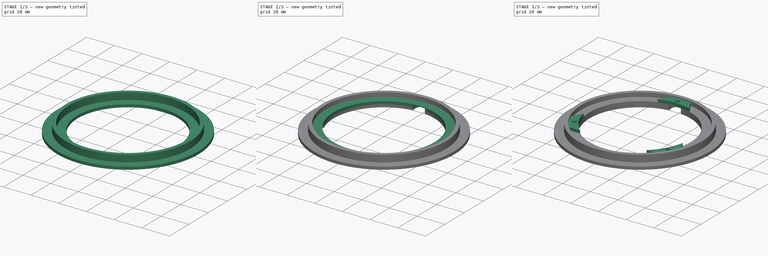
[diagram: build sequence overview — one tinted view per stage of 3, left to right]
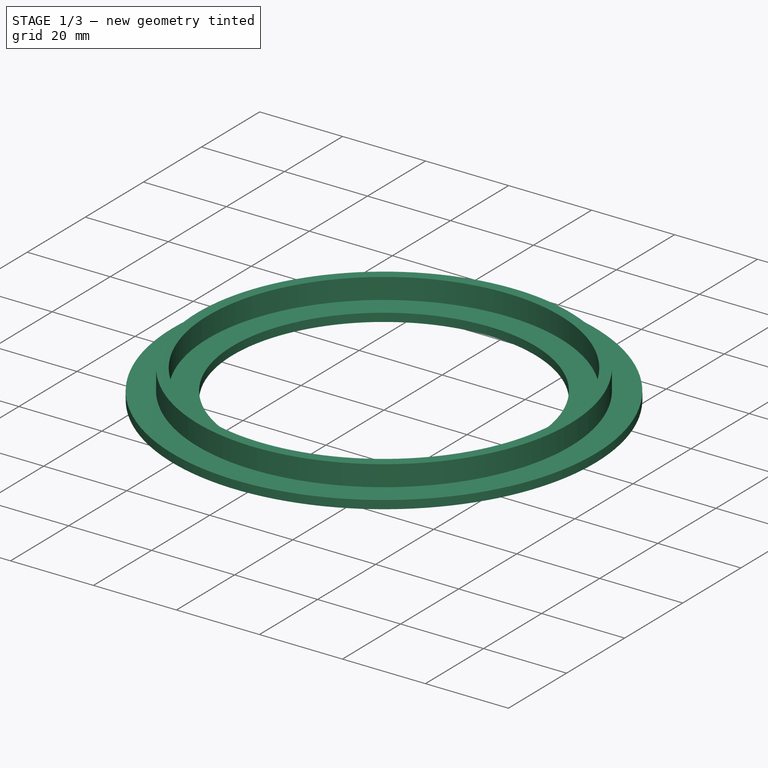
[diagram: stage 1 of 3 — iso view after this stage's code; geometry added in this stage tinted green]
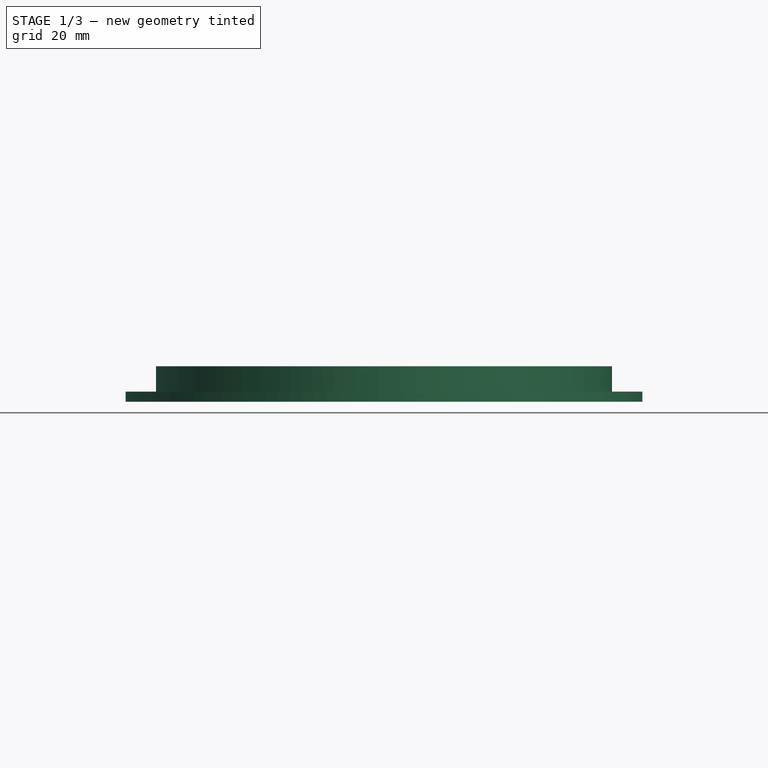
[diagram: stage 1 of 3 — front view after this stage's code; geometry added in this stage tinted green]
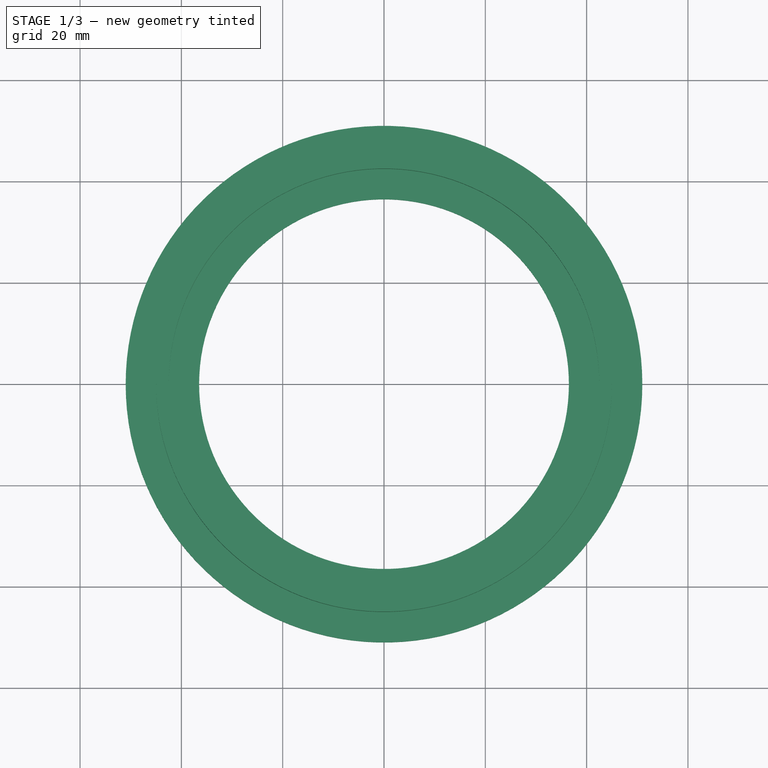
[diagram: stage 1 of 3 — top view after this stage's code; geometry added in this stage tinted green]
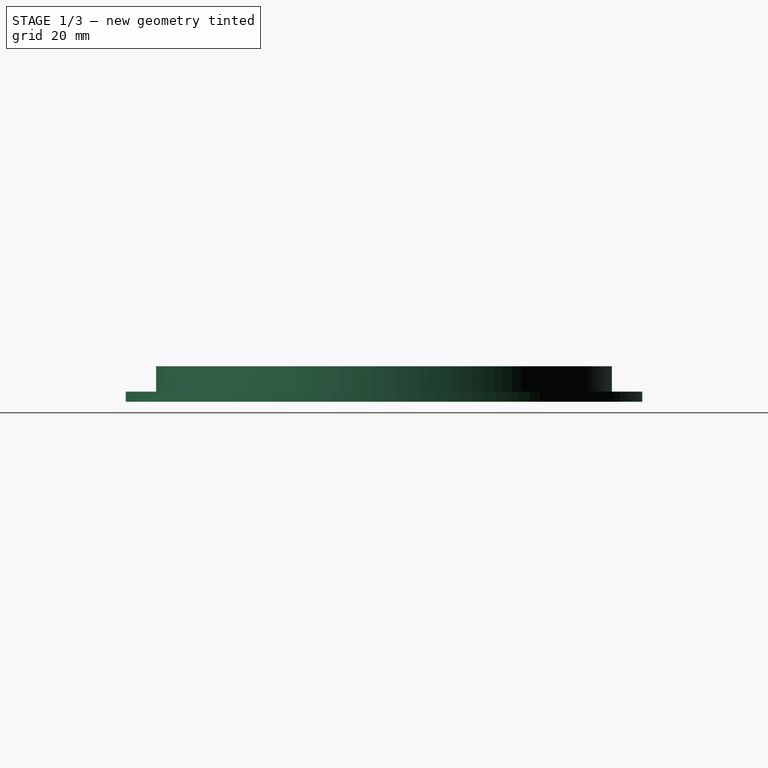
[diagram: stage 1 of 3 — right view after this stage's code; geometry added in this stage tinted green]
FCSTD DOCUMENT  (FreeCAD 0.19R24276 (Git))
Label: Mobile_connection_bottom_part_N1_add
License: All rights reserved
LicenseURL: http://en.wikipedia.org/wiki/All_rights_reserved
objects: Sketcher::SketchObject×6, PartDesign::Pad×4, PartDesign::Pocket×2, PartDesign::Body×1
note: 19 computed .brp shape members not serialized (recipe doc carries the construction recipe); baked Part::Feature solids carry a one-line shape summary decoded from their .brp

FEATURE [Sketcher::SketchObject] Sketch
  FullyConstrained = true
  MapMode = 5
  Support = -> [XY_Plane]
  sketch-geometry (2):
    g0: Circle CenterX=0 CenterY=0 CenterZ=0 NormalX=0 NormalY=0 NormalZ=1 AngleXU=0 Radius=36.5
    g1: Circle CenterX=0 CenterY=0 CenterZ=0 NormalX=0 NormalY=0 NormalZ=1 AngleXU=0 Radius=51
  constraints (4):
    c: Coincident(g0,g-1)
    c: Diameter(g0) = 73
    c: Coincident(g1,g0)
    c: Diameter(g1) = 102
FEATURE [PartDesign::Pad] Pad
  Direction = (1,1,1)
  Length = 2
  Length2 = 100
  Profile = -> Sketch
  Type = 0
FEATURE [Sketcher::SketchObject] Sketch001
  FullyConstrained = true
  MapMode = 5
  Placement = pos=(0,0,2) rot=(0,0,1;0rad)
  Support = -> [Pad]
  sketch-geometry (2):
    g0: Circle CenterX=0 CenterY=0 CenterZ=0 NormalX=0 NormalY=0 NormalZ=1 AngleXU=0 Radius=45
    g1: Circle CenterX=0 CenterY=0 CenterZ=0 NormalX=0 NormalY=0 NormalZ=1 AngleXU=0 Radius=42.5
  constraints (4):
    c: Coincident(g0,g-1)
    c: Diameter(g0) = 90
    c: Coincident(g1,g0)
    c: Diameter(g1) = 85
FEATURE [PartDesign::Pad] Pad001
  BaseFeature = -> Pad
  Direction = (1,1,1)
  Length = 5
  Length2 = 100
  Profile = -> Sketch001
  Type = 0
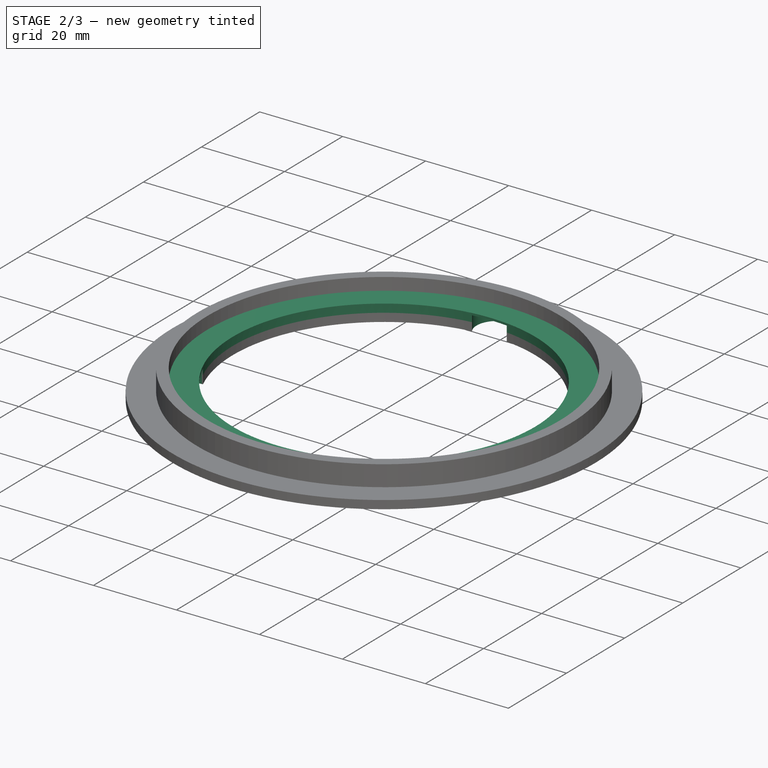
[diagram: stage 2 of 3 — iso view after this stage's code; geometry added in this stage tinted green]
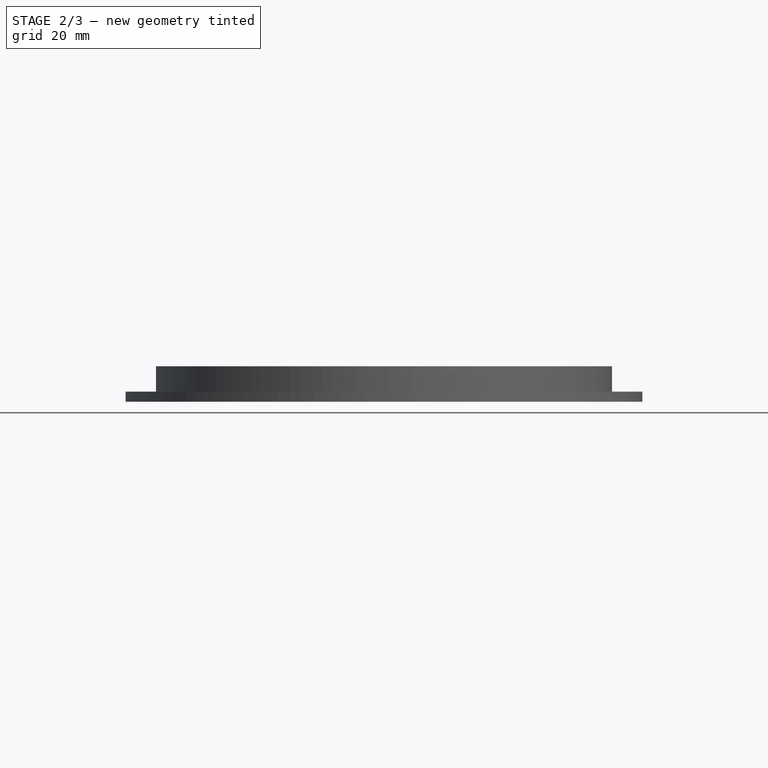
[diagram: stage 2 of 3 — front view after this stage's code; geometry added in this stage tinted green]
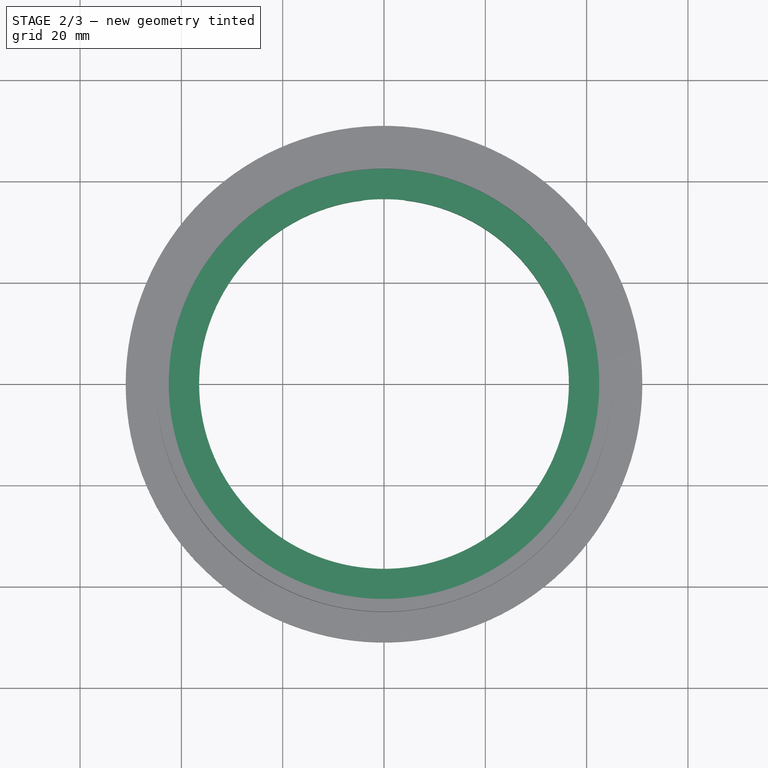
[diagram: stage 2 of 3 — top view after this stage's code; geometry added in this stage tinted green]
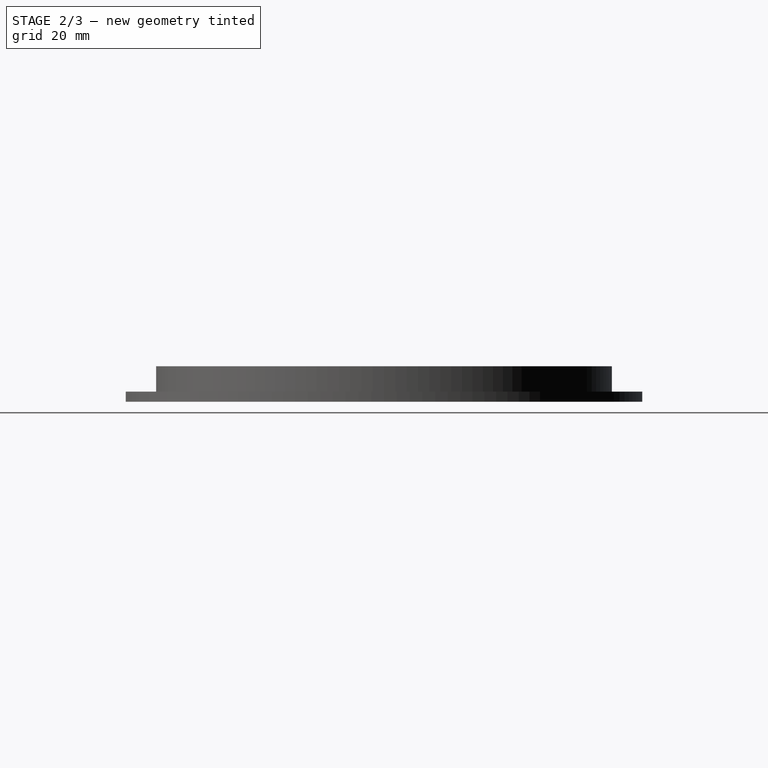
[diagram: stage 2 of 3 — right view after this stage's code; geometry added in this stage tinted green]
FEATURE [Sketcher::SketchObject] Sketch002
  FullyConstrained = true
  MapMode = 5
  Placement = pos=(0,0,2) rot=(0,0,1;0rad)
  Support = -> [Pad001]
  sketch-geometry (2):
    g0: Circle CenterX=0 CenterY=0 CenterZ=0 NormalX=0 NormalY=0 NormalZ=1 AngleXU=0 Radius=36.5
    g1: Circle CenterX=0 CenterY=0 CenterZ=0 NormalX=0 NormalY=0 NormalZ=1 AngleXU=0 Radius=43
  constraints (4):
    c: Coincident(g0,g-1)
    c: Diameter(g0) = 73
    c: Coincident(g1,g0)
    c: Diameter(g1) = 86
FEATURE [PartDesign::Pad] Pad002
  BaseFeature = -> Pad001
  Direction = (1,1,1)
  Length = 2
  Length2 = 100
  Profile = -> Sketch002
  Type = 0
FEATURE [Sketcher::SketchObject] Sketch003
  FullyConstrained = true
  MapMode = 5
  Placement = pos=(0,0,4) rot=(0,0,1;0rad)
  Support = -> [Pad002]
  sketch-geometry (7):
    g0: LineSegment StartX=33.775 StartY=-19.5 StartZ=0 EndX=3.49942e-11 EndY=39 EndZ=0
    g1: LineSegment StartX=3.49942e-11 StartY=39 StartZ=0 EndX=-33.775 EndY=-19.5 EndZ=0
    g2: LineSegment StartX=-33.775 StartY=-19.5 StartZ=0 EndX=33.775 EndY=-19.5 EndZ=0
    g3: Circle CenterX=0 CenterY=0 CenterZ=0 NormalX=0 NormalY=0 NormalZ=1 AngleXU=0 Radius=39
    g4: Circle CenterX=3.49942e-11 CenterY=39 CenterZ=0 NormalX=0 NormalY=0 NormalZ=1 AngleXU=0 Radius=1.5
    g5: Circle CenterX=33.775 CenterY=-19.5 CenterZ=0 NormalX=0 NormalY=0 NormalZ=1 AngleXU=0 Radius=1.5
    g6: Circle CenterX=-33.775 CenterY=-19.5 CenterZ=0 NormalX=0 NormalY=0 NormalZ=1 AngleXU=0 Radius=1.5
  constraints (17):
    c: Coincident(g0,g1)
    c: Coincident(g1,g2)
    c: Coincident(g2,g0)
    c: Equal(g0,g1)
    c: Equal(g0,g2)
    c: PointOnObject(g0,g3)
    c: PointOnObject(g1,g3)
    c: PointOnObject(g2,g3)
    c: Parallel(g2,g-1)
    c: Coincident(g3,g-1)
    c: Diameter(g3) = 78
    c: Coincident(g4,g0)
    c: Coincident(g5,g0)
    c: Coincident(g6,g1)
    c: Diameter(g6) = 3
    c: Equal(g6,g4)
    c: Equal(g6,g5)
FEATURE [Sketcher::SketchObject] Sketch004
  FullyConstrained = true
  MapMode = 5
  Placement = pos=(0,0,0) rot=(1,0,0;3.14159rad)
  sketch-geometry (7):
    g0: LineSegment StartX=7.1e-15 StartY=-39 StartZ=0 EndX=33.775 EndY=19.5 EndZ=0
    g1: LineSegment StartX=33.775 StartY=19.5 StartZ=0 EndX=-33.775 EndY=19.5 EndZ=0
    g2: LineSegment StartX=-33.775 StartY=19.5 StartZ=0 EndX=7.1e-15 EndY=-39 EndZ=0
    g3: Circle CenterX=0 CenterY=0 CenterZ=0 NormalX=0 NormalY=0 NormalZ=1 AngleXU=0 Radius=39
    g4: Circle CenterX=33.775 CenterY=19.5 CenterZ=0 NormalX=0 NormalY=0 NormalZ=1 AngleXU=0 Radius=5
    g5: Circle CenterX=-33.775 CenterY=19.5 CenterZ=0 NormalX=0 NormalY=0 NormalZ=1 AngleXU=0 Radius=5
    g6: Circle CenterX=7.1e-15 CenterY=-39 CenterZ=0 NormalX=0 NormalY=0 NormalZ=1 AngleXU=0 Radius=5
  constraints (17):
    c: Coincident(g0,g1)
    c: Coincident(g1,g2)
    c: Coincident(g2,g0)
    c: Equal(g0,g1)
    c: Equal(g0,g2)
    c: PointOnObject(g0,g3)
    c: PointOnObject(g1,g3)
    c: PointOnObject(g2,g3)
    c: Parallel(g1,g-1)
    c: Coincident(g3,g-1)
    c: Diameter(g3) = 78
    c: Coincident(g4,g0)
    c: Coincident(g5,g1)
    c: Coincident(g6,g0)
    c: Diameter(g4) = 10
    c: Diameter(g6) = 10
    c: Diameter(g5) = 10
FEATURE [PartDesign::Pocket] Pocket001
  BaseFeature = -> Pad002
  Length = 3.5
  Length2 = 100
  Profile = -> Sketch004
  Type = 0
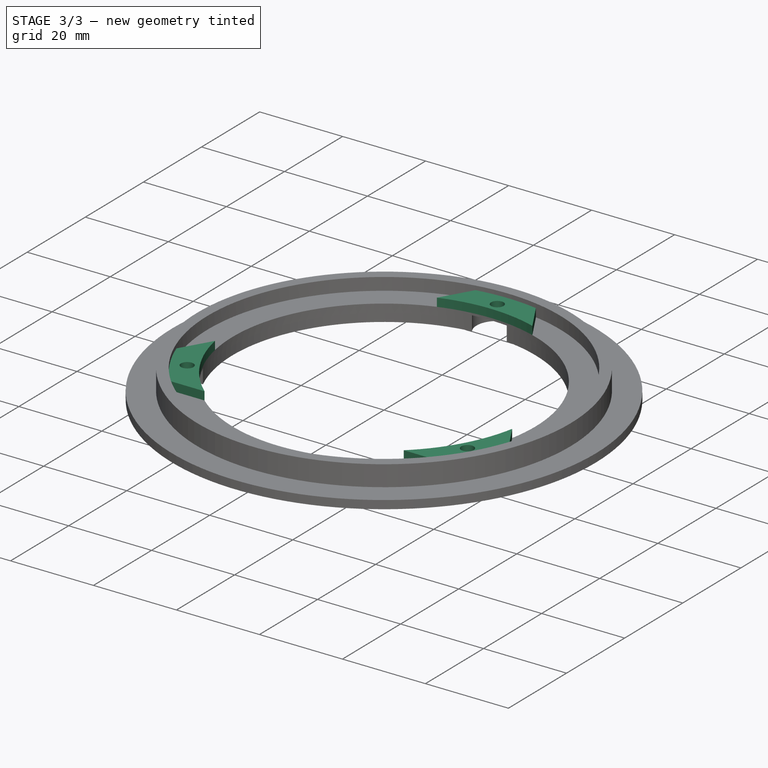
[diagram: stage 3 of 3 — iso view after this stage's code; geometry added in this stage tinted green]
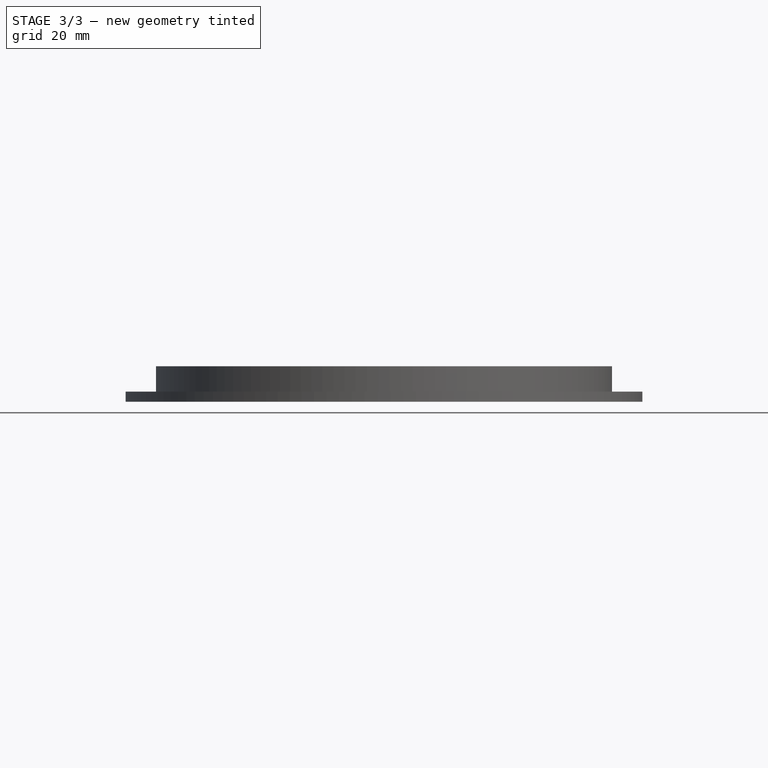
[diagram: stage 3 of 3 — front view after this stage's code; geometry added in this stage tinted green]
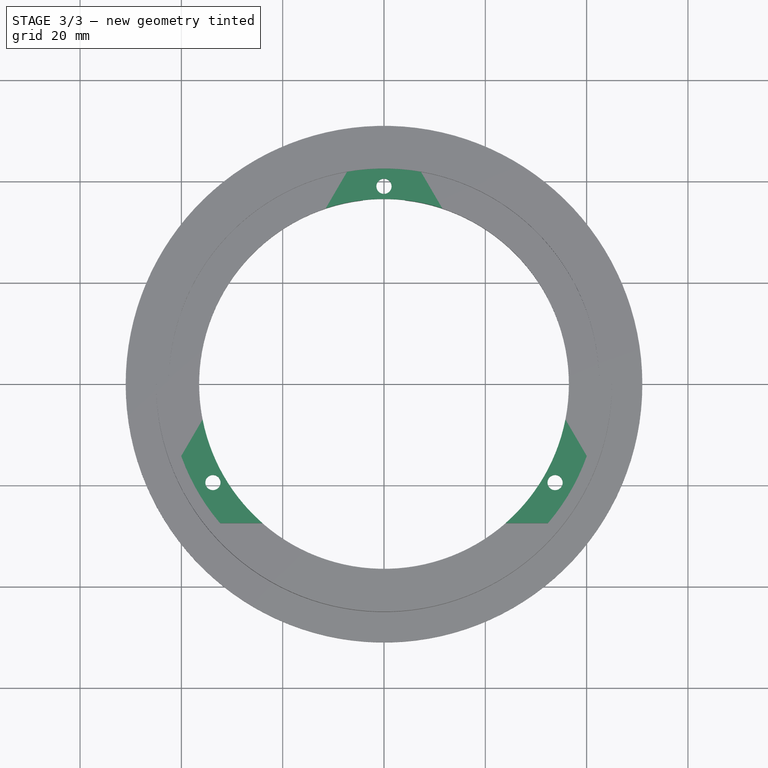
[diagram: stage 3 of 3 — top view after this stage's code; geometry added in this stage tinted green]
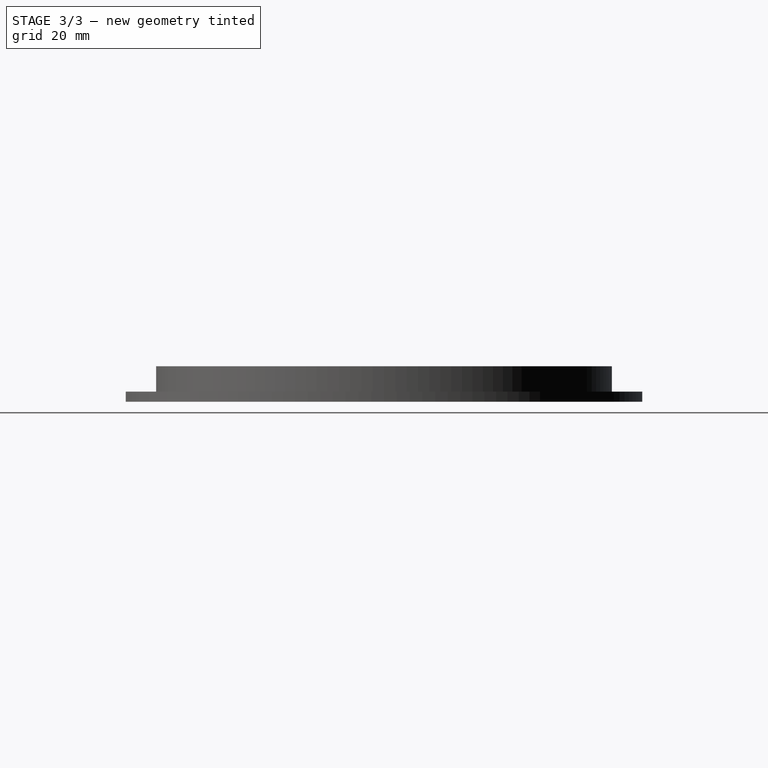
[diagram: stage 3 of 3 — right view after this stage's code; geometry added in this stage tinted green]
FEATURE [Sketcher::SketchObject] Sketch005
  FullyConstrained = false
  MapMode = 5
  Placement = pos=(0,0,4) rot=(0,0,1;0rad)
  Support = -> [Pocket001]
  sketch-geometry (13):
    g0: ArcOfCircle CenterX=0 CenterY=0 CenterZ=0 NormalX=0 NormalY=0 NormalZ=1 AngleXU=0 Radius=36.5 StartAngle=1.25012 EndAngle=1.89148
    g1: ArcOfCircle CenterX=0 CenterY=0 CenterZ=0 NormalX=0 NormalY=0 NormalZ=1 AngleXU=0 Radius=42.5 StartAngle=3.48391 EndAngle=3.84526
    g2: LineSegment StartX=-32.4052 StartY=-27.4982 StartZ=0 EndX=-24.0021 EndY=-27.4982 EndZ=0
    g3: LineSegment StartX=40.0341 StartY=-14.2661 StartZ=0 EndX=35.8157 EndY=-7.03477 EndZ=0
    g4: LineSegment StartX=-7.28704 StartY=41.8706 StartZ=0 EndX=-11.5055 EndY=34.6392 EndZ=0
    g5: Circle CenterX=0 CenterY=0 CenterZ=0 NormalX=0 NormalY=0 NormalZ=1 AngleXU=0 Radius=55
    g6: ArcOfCircle CenterX=0 CenterY=0 CenterZ=0 NormalX=0 NormalY=0 NormalZ=1 AngleXU=0 Radius=36.5 StartAngle=3.33553 EndAngle=3.99477
    g7: ArcOfCircle CenterX=0 CenterY=0 CenterZ=0 NormalX=0 NormalY=0 NormalZ=1 AngleXU=0 Radius=36.5 StartAngle=5.43001 EndAngle=6.08924
    g8: LineSegment StartX=-35.8157 StartY=-7.0346 StartZ=0 EndX=-40.0341 EndY=-14.266 EndZ=0
    g9: LineSegment StartX=24.0021 StartY=-27.4982 StartZ=0 EndX=32.4052 EndY=-27.4982 EndZ=0
    g10: LineSegment StartX=11.5052 StartY=34.6393 StartZ=0 EndX=7.28678 EndY=41.8707 EndZ=0
    g11: ArcOfCircle CenterX=0 CenterY=0 CenterZ=0 NormalX=0 NormalY=0 NormalZ=1 AngleXU=0 Radius=42.5 StartAngle=5.57952 EndAngle=5.94086
    g12: ArcOfCircle CenterX=0 CenterY=0 CenterZ=0 NormalX=0 NormalY=0 NormalZ=1 AngleXU=0 Radius=42.5 StartAngle=1.39849 EndAngle=1.74311
  constraints (32):
    c: Coincident(g0,g-1)
    c: Diameter(g0) = 73
    c: Coincident(g1,g0)
    c: Diameter(g1) = 85
    c: Coincident(g5,g0)
    c: Parallel(g2,g-1)
    c: Diameter(g5) = 110
    c: Equal(g0,g6)
    c: Coincident(g0,g6)
    c: Equal(g6,g7)
    c: Coincident(g6,g7)
    c: Coincident(g4,g0)
    c: Coincident(g8,g6)
    c: Tangent(g4,g8)
    c: Coincident(g2,g6)
    c: Coincident(g9,g7)
    c: Tangent(g2,g9)
    c: PointOnObject(g3,g1)
    c: Coincident(g3,g7)
    c: Coincident(g10,g0)
    c: Tangent(g3,g10)
    c: PointOnObject(g10,g1)
    c: Coincident(g1,g8)
    c: Coincident(g12,g4)
    c: Equal(g1,g11)
    c: Coincident(g1,g2)
    c: Coincident(g11,g9)
    c: Coincident(g1,g11)
    c: Equal(g11,g12)
    c: PointOnObject(g11,g3)
    c: PointOnObject(g12,g10)
    c: Coincident(g11,g12)
FEATURE [PartDesign::Pad] Pad003
  BaseFeature = -> Pocket001
  Direction = (1,1,1)
  Length = 2
  Length2 = 100
  Profile = -> Sketch005
  Type = 0
FEATURE [PartDesign::Pocket] Pocket
  BaseFeature = -> Pad003
  Length = 5
  Length2 = 100
  Midplane = true
  Profile = -> Sketch003
  Type = 1
FEATURE [PartDesign::Body] Body
  Group = -> [Sketch,Pad,Sketch001,Pad001,Sketch002,Pad002,Sketch004,Pocket001,Sketch005,Pad003,Sketch003,Pocket]
  Origin = -> Origin
  Tip = -> Pocket
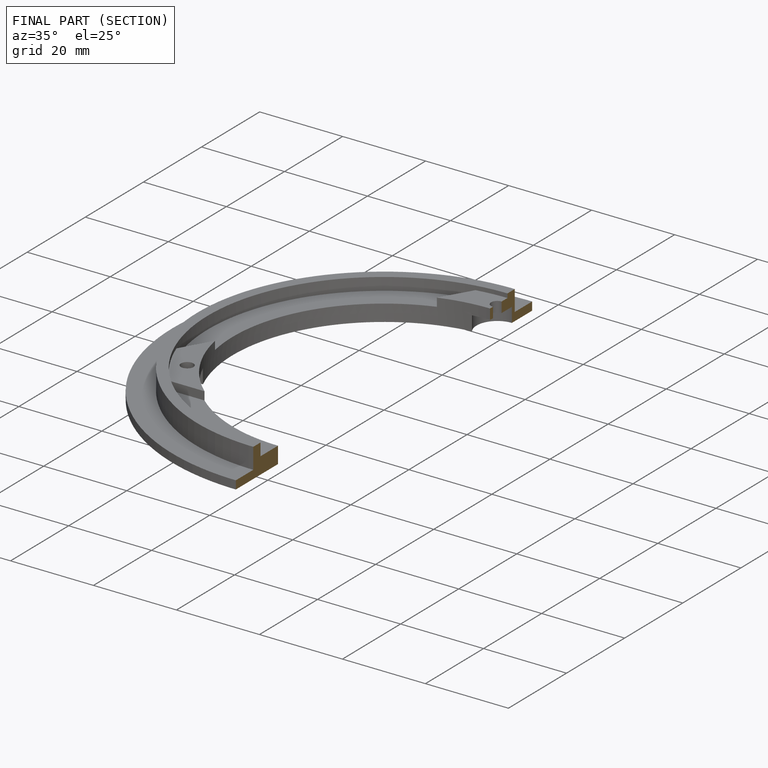
[diagram: finished part — half-section view (interior)]
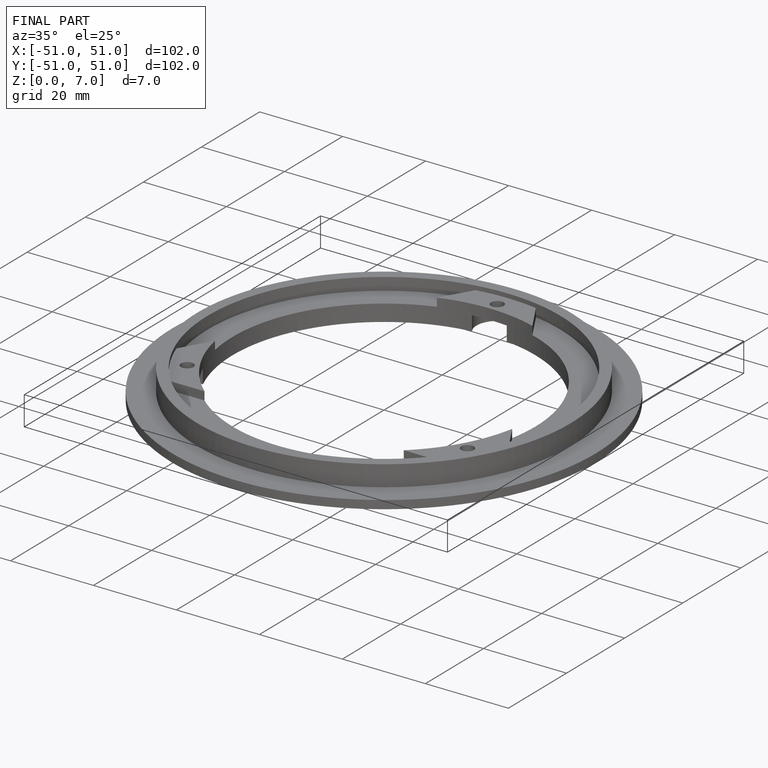
[diagram: finished part — iso view with bounding-box wireframe]
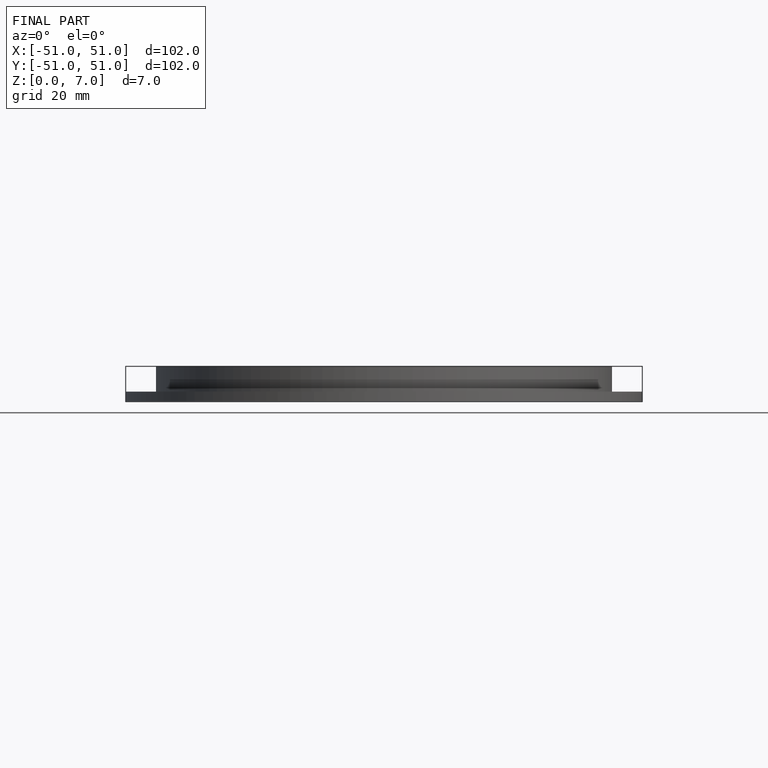
[diagram: finished part — front view with bounding-box wireframe]
